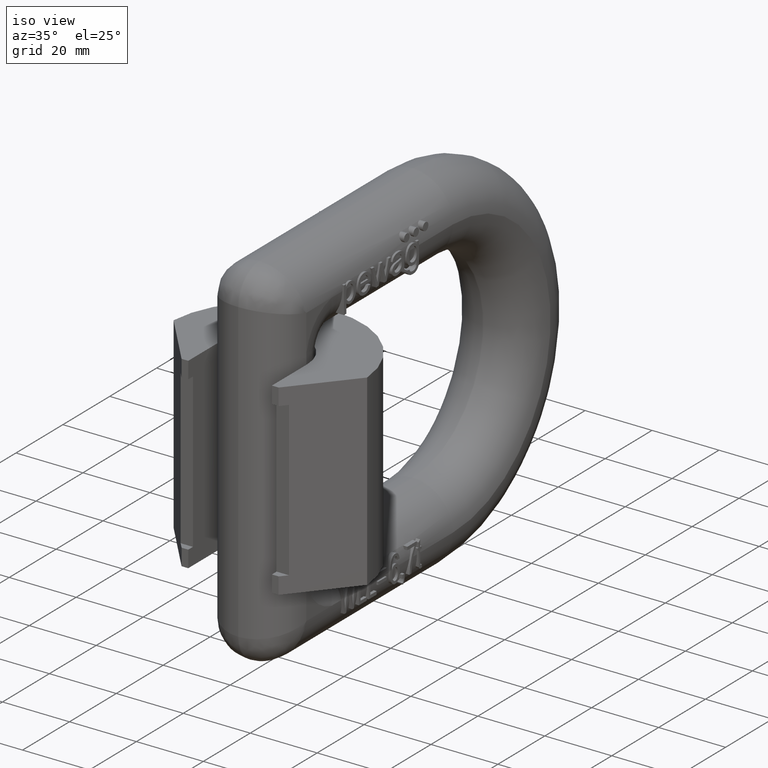
[diagram: clean part render]
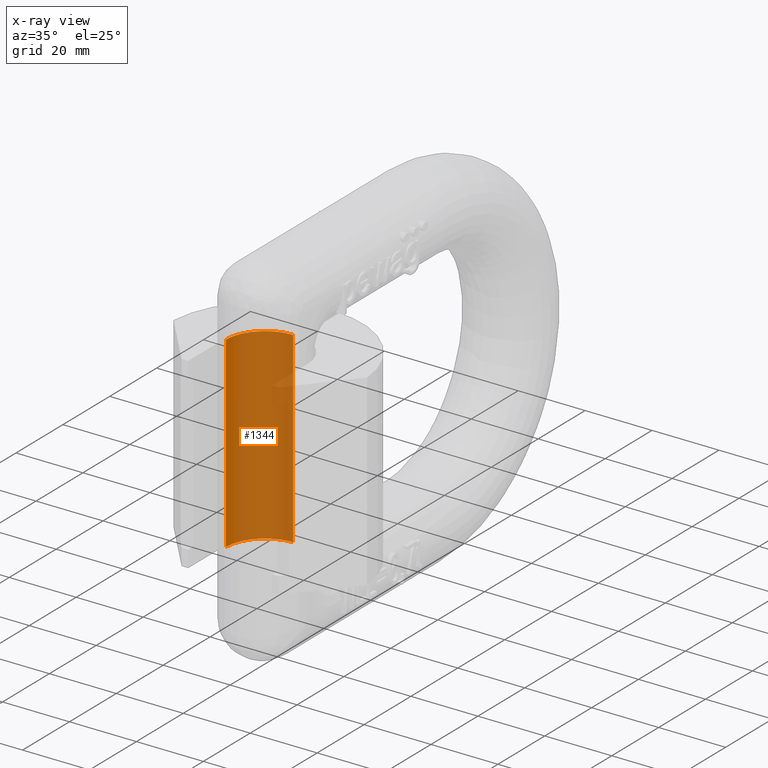
[diagram: x-ray — body ghosted, one internal face saturated and labeled with its STEP entity id]
A machine part, iso view, then the same camera in x-ray: the body is ghosted and one INTERNAL B-rep face — a face not visible from any outside direction — is saturated and labeled: STEP entity #1344.
In plain terms, the highlighted cylindrical surface (partial cylindrical patch) has radius 11.9 mm, axis along (0, 0, 1).
Its self-contained STEP definition (entity closure, byte-faithful):
#1344=ADVANCED_FACE('',(#1859),#1770,.T.);
#1770=CYLINDRICAL_SURFACE('',#8819,11.9);
#1859=FACE_OUTER_BOUND('',#2306,.T.);
#2306=EDGE_LOOP('',(#3279,#3280,#3281,#3282));
#2789=CIRCLE('',#8817,11.9);
#2790=CIRCLE('',#8818,11.9);
#3279=ORIENTED_EDGE('',*,*,#6513,.T.);
#3280=ORIENTED_EDGE('',*,*,#6247,.F.);
#3281=ORIENTED_EDGE('',*,*,#6514,.T.);
#3282=ORIENTED_EDGE('',*,*,#6507,.T.);
#5396=VERTEX_POINT('',#10871);
#5399=VERTEX_POINT('',#10876);
#5617=VERTEX_POINT('',#12386);
#5618=VERTEX_POINT('',#12388);
#6247=EDGE_CURVE('',#5399,#5396,#7505,.T.);
#6507=EDGE_CURVE('',#5618,#5617,#7587,.T.);
#6513=EDGE_CURVE('',#5617,#5396,#2789,.T.);
#6514=EDGE_CURVE('',#5399,#5618,#2790,.T.);
#7505=LINE('',#10877,#8031);
#7587=LINE('',#12387,#8113);
#8031=VECTOR('',#9236,1.);
#8113=VECTOR('',#9542,1.);
#8817=AXIS2_PLACEMENT_3D('',#12464,#9560,#9561);
#8818=AXIS2_PLACEMENT_3D('',#12477,#9562,#9563);
#8819=AXIS2_PLACEMENT_3D('',#12490,#9564,#9565);
#9236=DIRECTION('',(0.,0.,1.));
#9542=DIRECTION('',(0.,0.,1.));
#9560=DIRECTION('',(-6.29445011493568E-18,-2.49600500140548E-16,-1.));
#9561=DIRECTION('',(0.,-1.,2.91550164029715E-16));
#9562=DIRECTION('',(0.,0.,1.));
#9563=DIRECTION('',(1.,0.,0.));
#9564=DIRECTION('',(0.,0.,1.));
#9565=DIRECTION('',(1.,0.,0.));
#10871=CARTESIAN_POINT('',(-0.103782113629559,27.,28.));
#10876=CARTESIAN_POINT('',(-0.103782113629559,27.,-28.));
#10877=CARTESIAN_POINT('',(-0.103782113629559,27.,28.));
#12386=CARTESIAN_POINT('',(-12.,15.4,28.));
#12387=CARTESIAN_POINT('',(-12.,15.4,44.5));
#12388=CARTESIAN_POINT('',(-12.,15.4,-28.));
#12464=CARTESIAN_POINT('',(-0.103782113629558,15.1,28.));
#12477=CARTESIAN_POINT('',(-0.103782113629558,15.1,-28.));
#12490=CARTESIAN_POINT('',(-0.103782113629559,15.1,44.5));